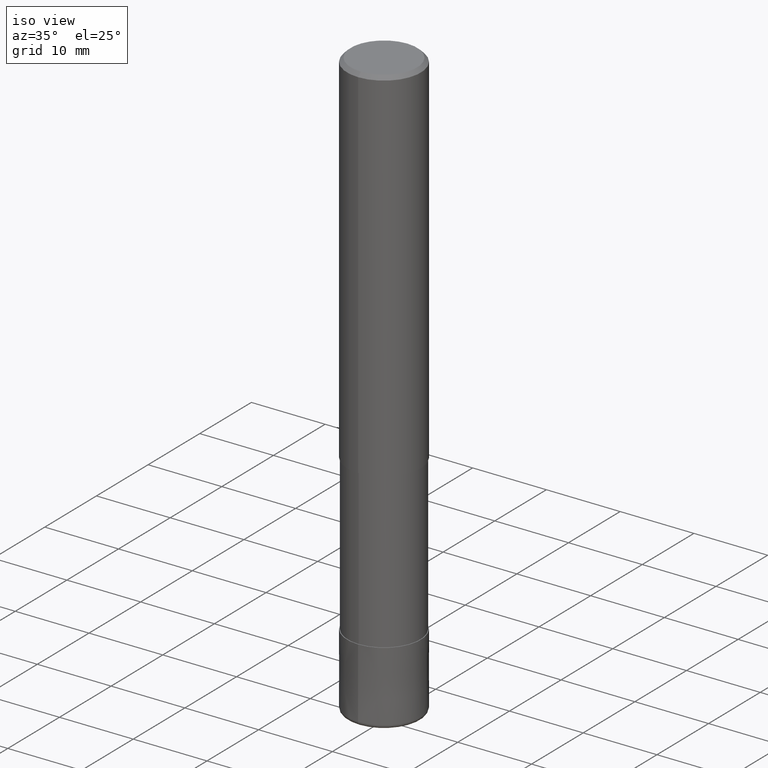
[diagram: clean part render]
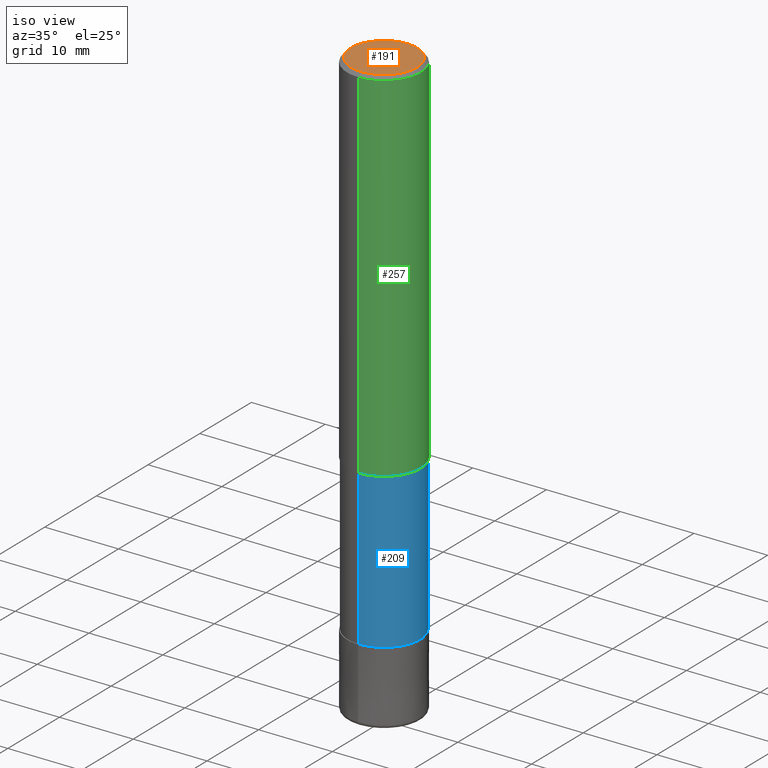
[diagram: same view with three faces highlighted in distinct colors, each labeled with its STEP entity id]
A machine part, iso view with three faces highlighted in distinct colors.
Their STEP definitions:

[orange] entity #191 — the highlighted planar face has unit normal (-0, 0, 1).
#121=EDGE_CURVE('',#151,#259,#308,.T.);
#133=EDGE_CURVE('',#259,#151,#323,.T.);
#151=VERTEX_POINT('',#341);
#191=ADVANCED_FACE('',(#385),#386,.T.);
#259=VERTEX_POINT('',#465);
#308=CIRCLE('',#512,4.5);
#323=CIRCLE('',#529,4.5);
#341=CARTESIAN_POINT('',(0.0,4.5,0.0));
#385=FACE_OUTER_BOUND('',#611,.T.);
#386=PLANE('',#612);
#465=CARTESIAN_POINT('',(5.5107285922007E-016,-4.5,0.0));
#512=AXIS2_PLACEMENT_3D('',#747,#748,#749);
#529=AXIS2_PLACEMENT_3D('',#774,#775,#776);
#611=EDGE_LOOP('',(#850,#851));
#612=AXIS2_PLACEMENT_3D('',#852,#853,#854);
#747=CARTESIAN_POINT('',(0.0,0.0,0.0));
#748=DIRECTION('',(0.0,0.0,-1.0));
#749=DIRECTION('',(0.0,1.0,0.0));
#774=CARTESIAN_POINT('',(0.0,0.0,0.0));
#775=DIRECTION('',(0.0,0.0,-1.0));
#776=DIRECTION('',(0.0,1.0,0.0));
#850=ORIENTED_EDGE('',*,*,#121,.F.);
#851=ORIENTED_EDGE('',*,*,#133,.F.);
#852=CARTESIAN_POINT('',(0.0,2.25,0.0));
#853=DIRECTION('',(-0.0,0.0,1.0));
#854=DIRECTION('',(0.0,-1.0,0.0));

[blue] entity #209 — the highlighted cylindrical surface (partial cylindrical patch) has radius 4.905 mm, axis along (-0, -0, 1).
#117=VERTEX_POINT('',#304);
#167=EDGE_CURVE('',#173,#281,#359,.T.);
#173=VERTEX_POINT('',#365);
#179=EDGE_CURVE('',#117,#173,#372,.T.);
#195=EDGE_CURVE('',#117,#251,#390,.T.);
#209=ADVANCED_FACE('',(#404),#405,.T.);
#231=EDGE_CURVE('',#281,#251,#431,.T.);
#251=VERTEX_POINT('',#455);
#281=VERTEX_POINT('',#492);
#304=CARTESIAN_POINT('',(0.0,4.90495,-49.0));
#359=CIRCLE('',#578,4.90495);
#365=CARTESIAN_POINT('',(0.0,4.90495,-70.0));
#372=LINE('',#594,#595);
#390=CIRCLE('',#619,4.90495);
#404=FACE_OUTER_BOUND('',#639,.T.);
#405=CYLINDRICAL_SURFACE('',#640,4.90495);
#431=LINE('',#672,#673);
#455=CARTESIAN_POINT('',(6.00663293518107E-016,-4.90495,-49.0));
#492=CARTESIAN_POINT('',(6.00663293518107E-016,-4.90495,-70.0));
#578=AXIS2_PLACEMENT_3D('',#819,#820,#821);
#594=CARTESIAN_POINT('',(-6.00663293518107E-016,4.90495,-59.5));
#595=VECTOR('',#836,1.0);
#619=AXIS2_PLACEMENT_3D('',#856,#857,#858);
#639=EDGE_LOOP('',(#868,#869,#870,#871));
#640=AXIS2_PLACEMENT_3D('',#872,#873,#874);
#672=CARTESIAN_POINT('',(6.00663293518107E-016,-4.90495,-59.5));
#673=VECTOR('',#913,1.0);
#819=CARTESIAN_POINT('',(0.0,0.0,-70.0));
#820=DIRECTION('',(0.0,0.0,-1.0));
#821=DIRECTION('',(0.0,1.0,0.0));
#836=DIRECTION('',(0.0,0.0,-1.0));
#856=CARTESIAN_POINT('',(0.0,0.0,-49.0));
#857=DIRECTION('',(0.0,0.0,-1.0));
#858=DIRECTION('',(0.0,1.0,0.0));
#868=ORIENTED_EDGE('',*,*,#179,.F.);
#869=ORIENTED_EDGE('',*,*,#195,.T.);
#870=ORIENTED_EDGE('',*,*,#231,.F.);
#871=ORIENTED_EDGE('',*,*,#167,.F.);
#872=CARTESIAN_POINT('',(0.0,0.0,-59.5));
#873=DIRECTION('',(-0.0,-0.0,1.0));
#874=DIRECTION('',(0.0,1.0,0.0));
#913=DIRECTION('',(-0.0,-0.0,1.0));

[green] entity #257 — the highlighted cylindrical surface (partial cylindrical patch) has radius 5 mm, axis along (-0, -0, 1).
#155=VERTEX_POINT('',#345);
#185=VERTEX_POINT('',#379);
#189=EDGE_CURVE('',#273,#155,#383,.T.);
#217=VERTEX_POINT('',#415);
#219=EDGE_CURVE('',#155,#185,#417,.T.);
#239=EDGE_CURVE('',#273,#217,#441,.T.);
#257=ADVANCED_FACE('',(#462),#463,.T.);
#273=VERTEX_POINT('',#484);
#275=EDGE_CURVE('',#185,#217,#486,.T.);
#345=CARTESIAN_POINT('',(0.0,5.0,-49.0));
#379=CARTESIAN_POINT('',(6.12303176911189E-016,-5.0,-49.0));
#383=LINE('',#608,#609);
#415=CARTESIAN_POINT('',(6.12303176911189E-016,-5.0,-0.5));
#417=CIRCLE('',#656,5.0);
#441=CIRCLE('',#685,5.0);
#462=FACE_OUTER_BOUND('',#709,.T.);
#463=CYLINDRICAL_SURFACE('',#710,5.0);
#484=CARTESIAN_POINT('',(0.0,5.0,-0.5));
#486=LINE('',#735,#736);
#608=CARTESIAN_POINT('',(-6.12303176911189E-016,5.0,-24.75));
#609=VECTOR('',#848,1.0);
#656=AXIS2_PLACEMENT_3D('',#887,#888,#889);
#685=AXIS2_PLACEMENT_3D('',#925,#926,#927);
#709=EDGE_LOOP('',(#949,#950,#951,#952));
#710=AXIS2_PLACEMENT_3D('',#953,#954,#955);
#735=CARTESIAN_POINT('',(6.12303176911189E-016,-5.0,-24.75));
#736=VECTOR('',#991,1.0);
#848=DIRECTION('',(0.0,0.0,-1.0));
#887=CARTESIAN_POINT('',(0.0,0.0,-49.0));
#888=DIRECTION('',(0.0,0.0,-1.0));
#889=DIRECTION('',(0.0,1.0,0.0));
#925=CARTESIAN_POINT('',(0.0,0.0,-0.5));
#926=DIRECTION('',(0.0,0.0,-1.0));
#927=DIRECTION('',(0.0,1.0,0.0));
#949=ORIENTED_EDGE('',*,*,#189,.F.);
#950=ORIENTED_EDGE('',*,*,#239,.T.);
#951=ORIENTED_EDGE('',*,*,#275,.F.);
#952=ORIENTED_EDGE('',*,*,#219,.F.);
#953=CARTESIAN_POINT('',(0.0,0.0,-24.75));
#954=DIRECTION('',(-0.0,-0.0,1.0));
#955=DIRECTION('',(0.0,1.0,0.0));
#991=DIRECTION('',(-0.0,-0.0,1.0));